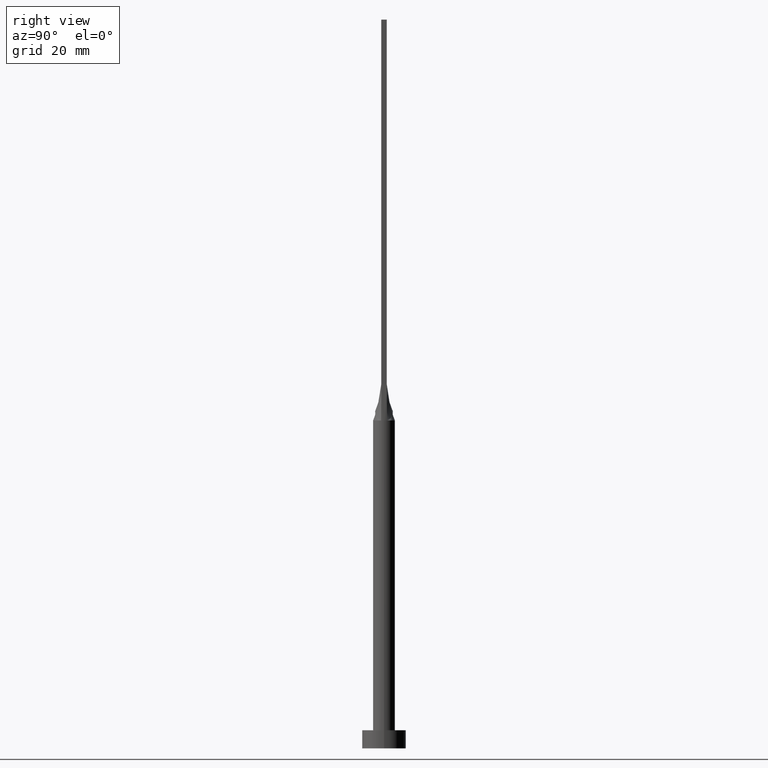
[diagram: clean part render]
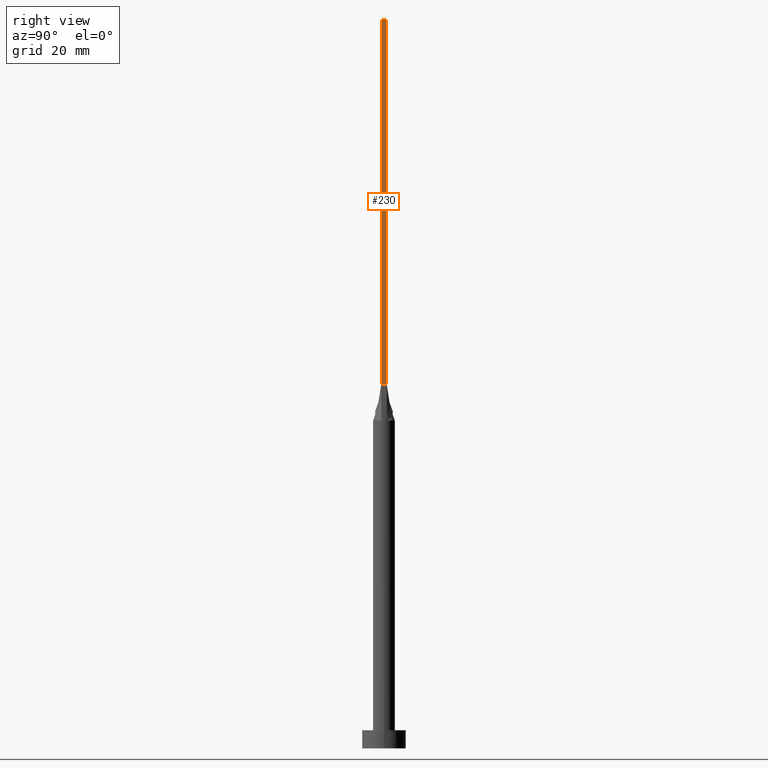
[diagram: same view with one face highlighted and labeled with its STEP entity id]
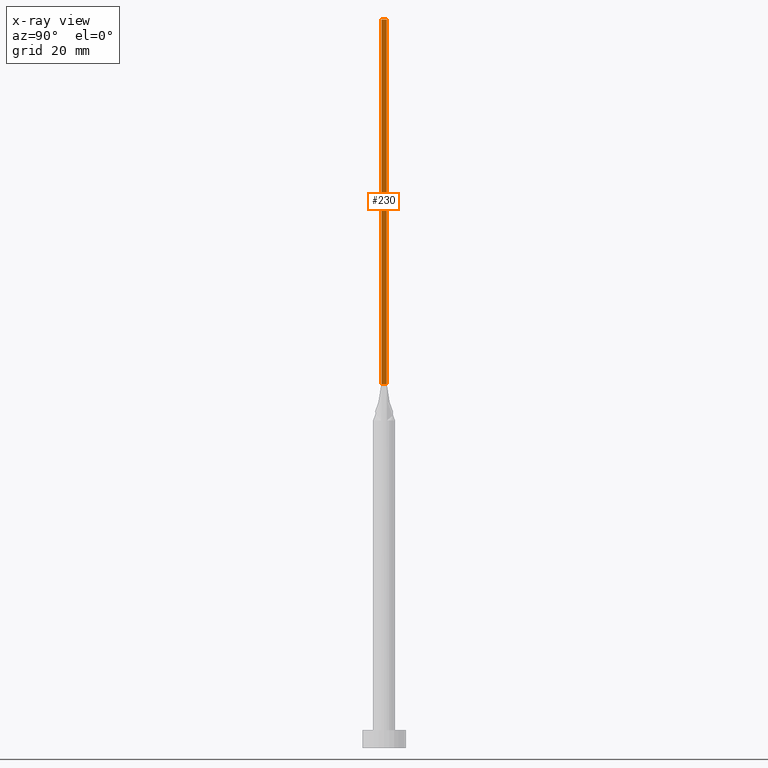
[diagram: x-ray of the same camera — body ghosted, the highlighted face saturated]
A machine part, right view. The second image highlights one B-rep face of the part: STEP entity #230.
The next image is the same camera in x-ray: the body ghosted, the highlighted face saturated — about 0% of this face is hidden behind the body in this view.
In plain terms, the highlighted planar face has unit normal (-1, 0, 0).
Its self-contained STEP definition (entity closure, byte-faithful):
#29 = DIRECTION ( 'NONE',  ( -1.000000000000000000, 0.000000000000000000, 0.000000000000000000 ) ) ;
#65 = DIRECTION ( 'NONE',  ( 0.000000000000000000, 1.000000000000000000, 0.000000000000000000 ) ) ;
#72 = DIRECTION ( 'NONE',  ( -0.000000000000000000, -0.000000000000000000, -1.000000000000000000 ) ) ;
#81 = FACE_OUTER_BOUND ( 'NONE', #164, .T. ) ;
#88 = AXIS2_PLACEMENT_3D ( 'NONE', #90, #29, #413 ) ;
#90 = CARTESIAN_POINT ( 'NONE',  ( 2.750000000000000000, -0.7499999999999997780, 200.0000000000000000 ) ) ;
#121 = CARTESIAN_POINT ( 'NONE',  ( 2.750000000000000000, -0.7499999999999997780, 200.0000000000000000 ) ) ;
#126 = CARTESIAN_POINT ( 'NONE',  ( 2.750000000000000000, 0.7500000000000002220, 200.0000000000000000 ) ) ;
#127 = VECTOR ( 'NONE', #290, 1000.000000000000000 ) ;
#135 = EDGE_CURVE ( 'NONE', #440, #300, #257, .T. ) ;
#164 = EDGE_LOOP ( 'NONE', ( #498, #560, #405, #510 ) ) ;
#165 = CARTESIAN_POINT ( 'NONE',  ( 2.750000000000000000, 0.7500000000000002220, 200.0000000000000000 ) ) ;
#230 = ADVANCED_FACE ( 'NONE', ( #81 ), #310, .F. ) ;
#257 = LINE ( 'NONE', #502, #493 ) ;
#264 = LINE ( 'NONE', #126, #127 ) ;
#290 = DIRECTION ( 'NONE',  ( -0.000000000000000000, -0.000000000000000000, -1.000000000000000000 ) ) ;
#300 = VERTEX_POINT ( 'NONE', #165 ) ;
#304 = CARTESIAN_POINT ( 'NONE',  ( 2.750000000000000000, -0.7499999999999997780, 100.0000000000000000 ) ) ;
#310 = PLANE ( 'NONE',  #88 ) ;
#336 = VERTEX_POINT ( 'NONE', #304 ) ;
#385 = CARTESIAN_POINT ( 'NONE',  ( 2.750000000000000000, 0.7500000000000002220, 100.0000000000000000 ) ) ;
#399 = EDGE_CURVE ( 'NONE', #336, #463, #546, .T. ) ;
#405 = ORIENTED_EDGE ( 'NONE', *, *, #135, .F. ) ;
#413 = DIRECTION ( 'NONE',  ( 0.000000000000000000, 0.000000000000000000, 1.000000000000000000 ) ) ;
#437 = CARTESIAN_POINT ( 'NONE',  ( 2.750000000000000000, -0.7499999999999997780, 200.0000000000000000 ) ) ;
#440 = VERTEX_POINT ( 'NONE', #437 ) ;
#449 = EDGE_CURVE ( 'NONE', #300, #463, #264, .T. ) ;
#463 = VERTEX_POINT ( 'NONE', #385 ) ;
#469 = LINE ( 'NONE', #121, #520 ) ;
#484 = EDGE_CURVE ( 'NONE', #440, #336, #469, .T. ) ;
#489 = CARTESIAN_POINT ( 'NONE',  ( 2.750000000000000000, 0.7500000000000002220, 100.0000000000000000 ) ) ;
#493 = VECTOR ( 'NONE', #65, 1000.000000000000000 ) ;
#498 = ORIENTED_EDGE ( 'NONE', *, *, #399, .T. ) ;
#502 = CARTESIAN_POINT ( 'NONE',  ( 2.750000000000000000, -0.7499999999999997780, 200.0000000000000000 ) ) ;
#509 = VECTOR ( 'NONE', #580, 1000.000000000000000 ) ;
#510 = ORIENTED_EDGE ( 'NONE', *, *, #484, .T. ) ;
#520 = VECTOR ( 'NONE', #72, 1000.000000000000000 ) ;
#546 = LINE ( 'NONE', #489, #509 ) ;
#560 = ORIENTED_EDGE ( 'NONE', *, *, #449, .F. ) ;
#580 = DIRECTION ( 'NONE',  ( -0.000000000000000000, 1.000000000000000000, -0.000000000000000000 ) ) ;